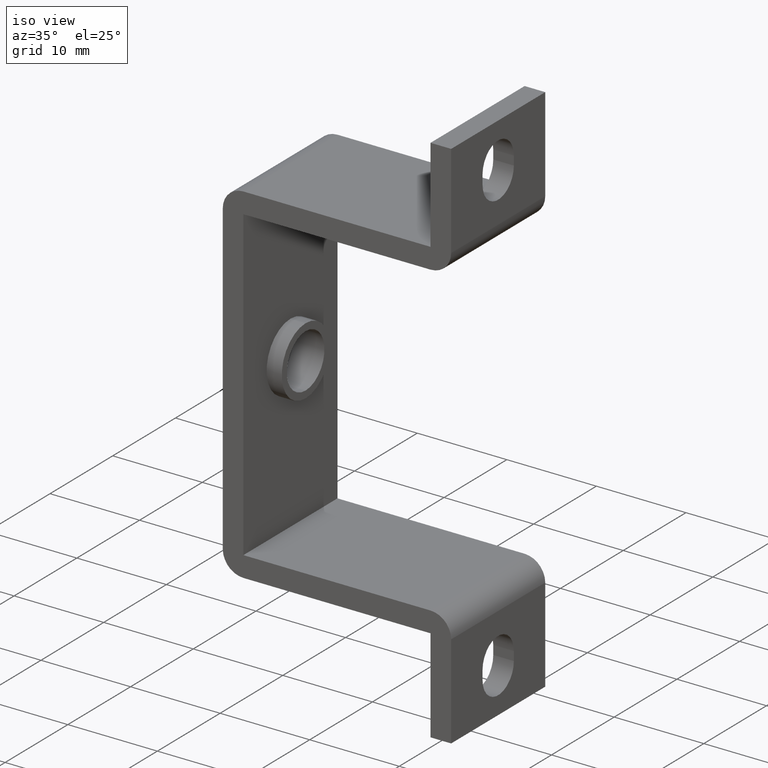
[diagram: clean part render]
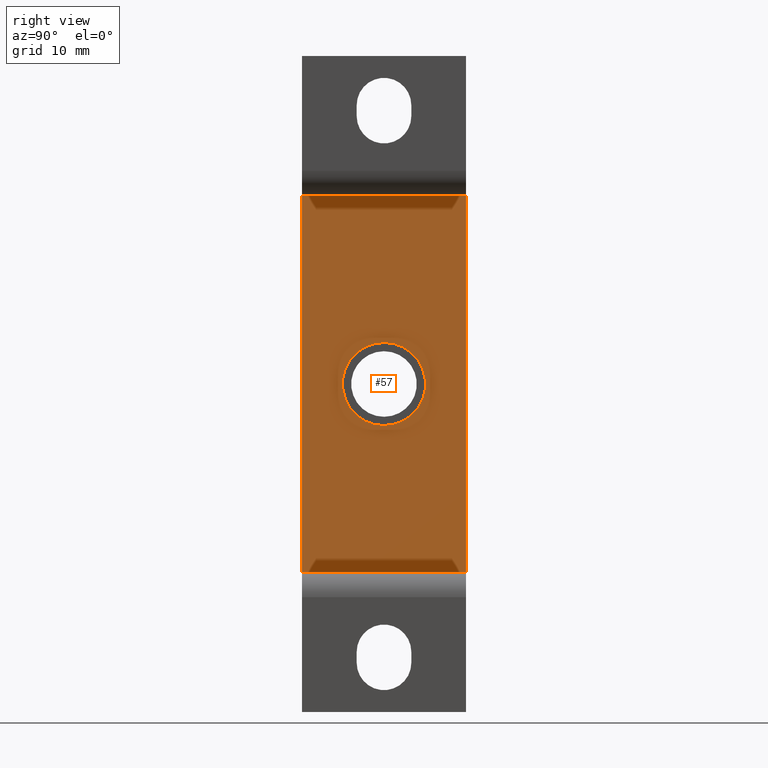
[diagram: tour spotlight — one face highlighted and labeled with its STEP entity id]
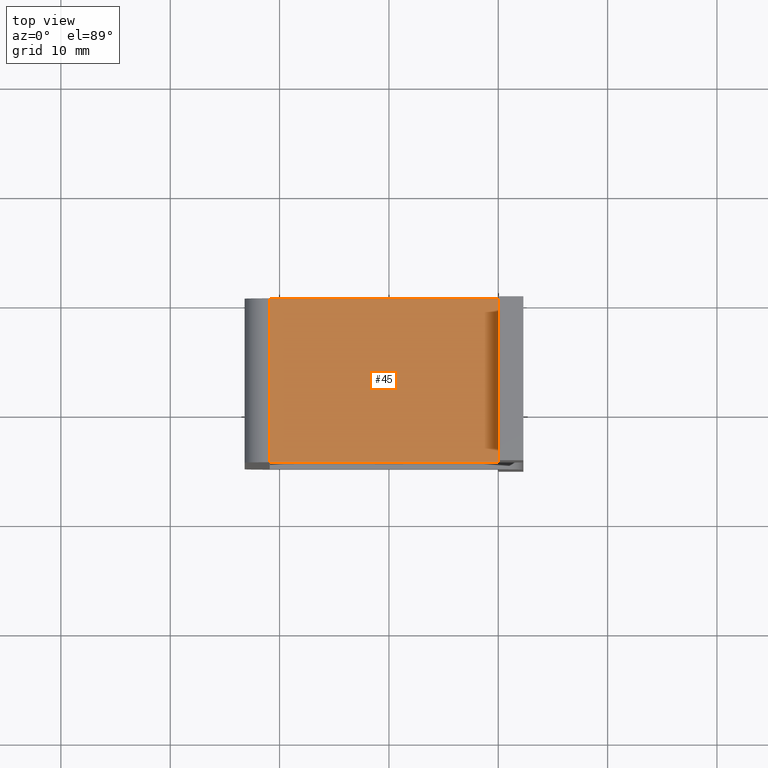
[diagram: tour spotlight — one face highlighted and labeled with its STEP entity id]
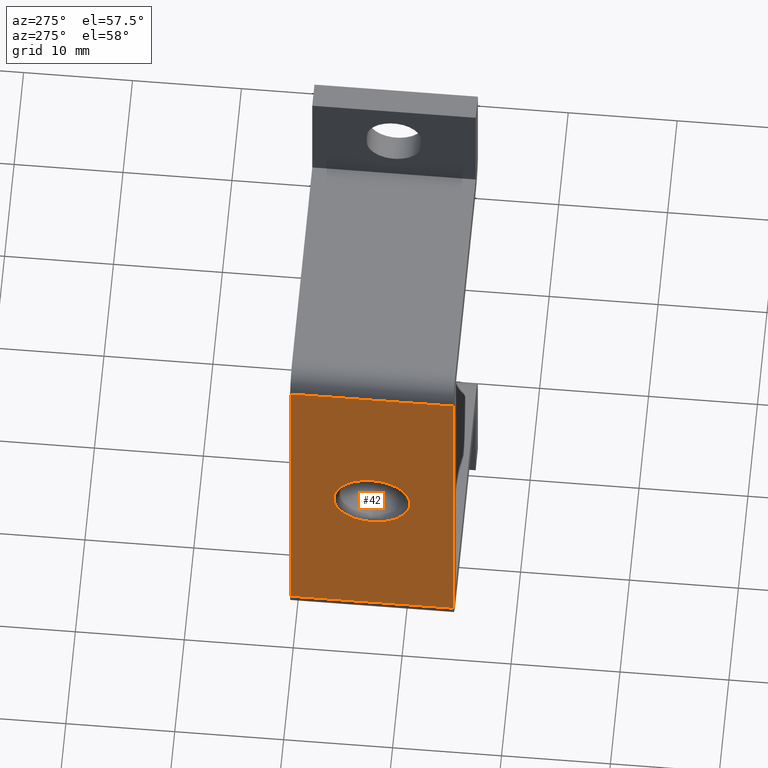
[diagram: tour spotlight — one face highlighted and labeled with its STEP entity id]
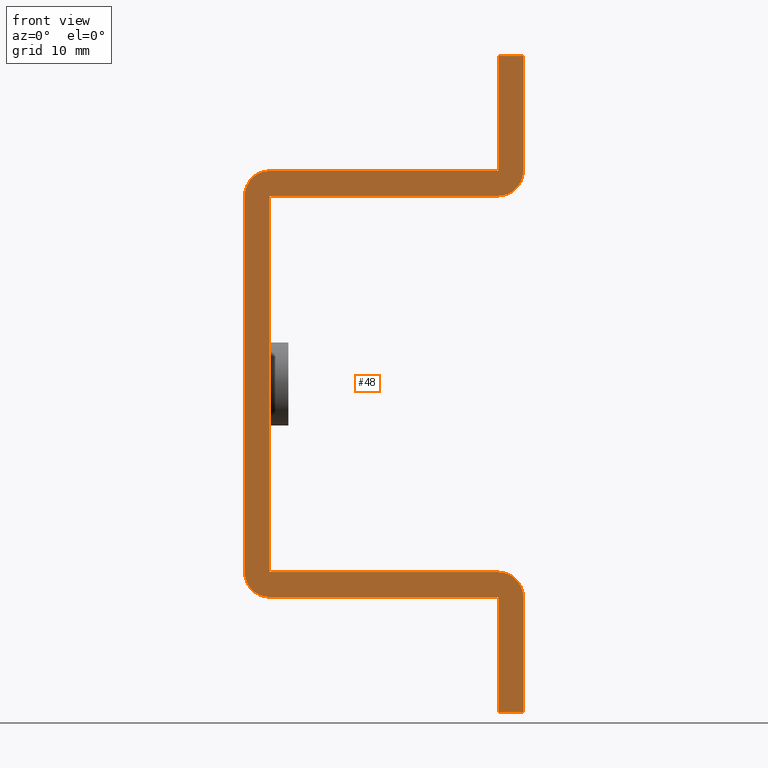
[diagram: tour spotlight — one face highlighted and labeled with its STEP entity id]
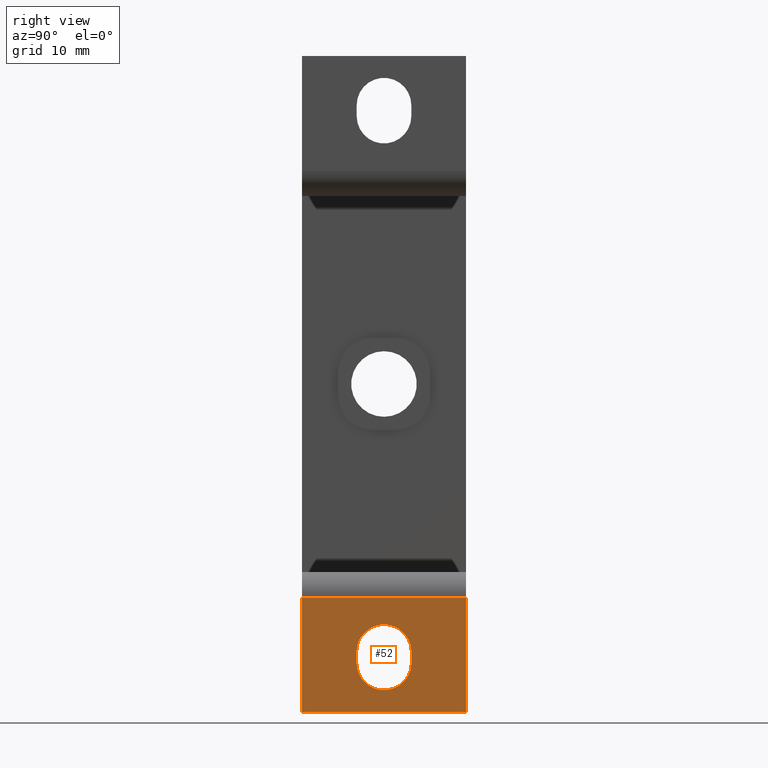
[diagram: tour spotlight — one face highlighted and labeled with its STEP entity id]
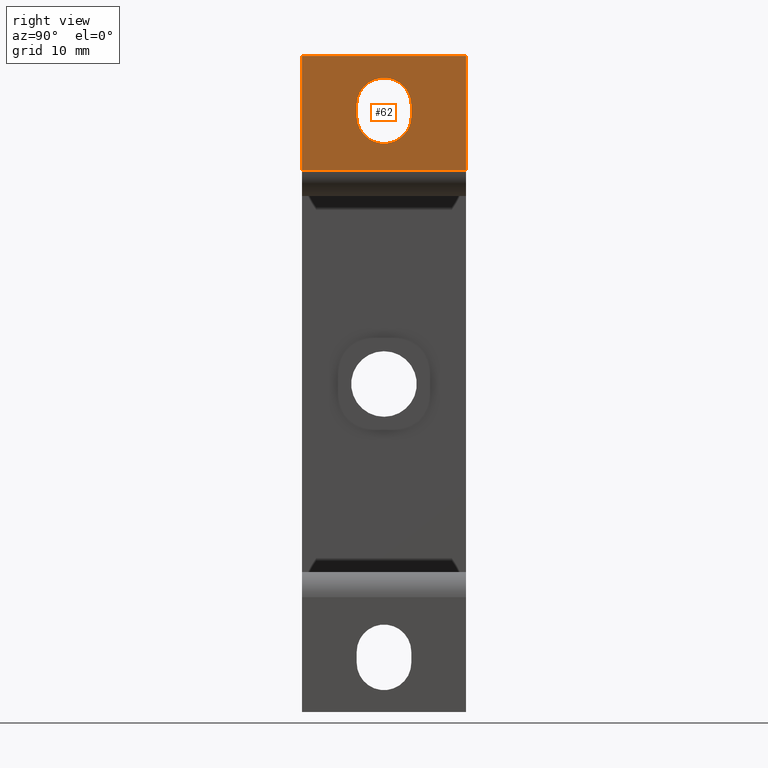
[diagram: tour spotlight — one face highlighted and labeled with its STEP entity id]
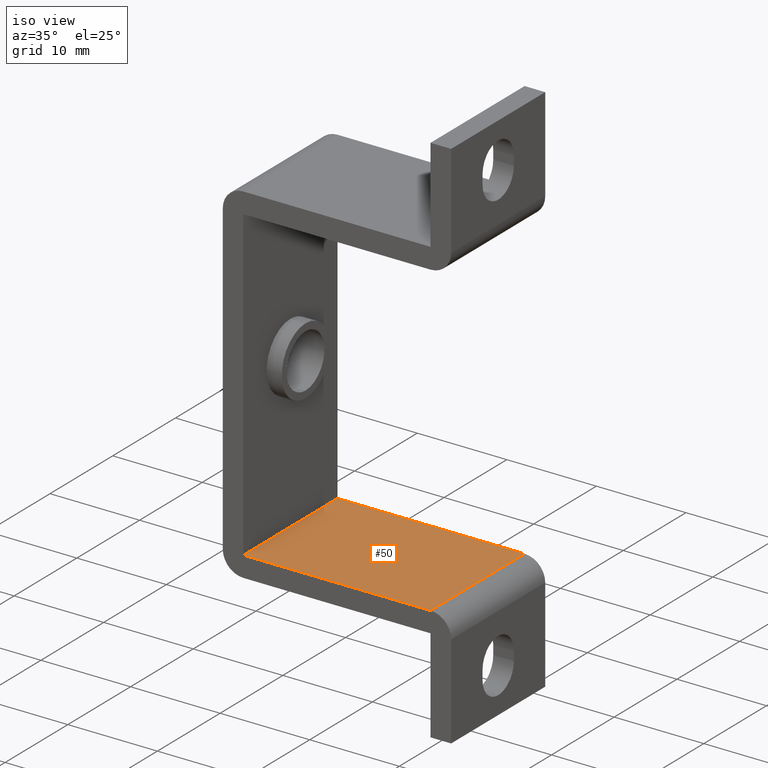
[diagram: tour spotlight — one face highlighted and labeled with its STEP entity id]
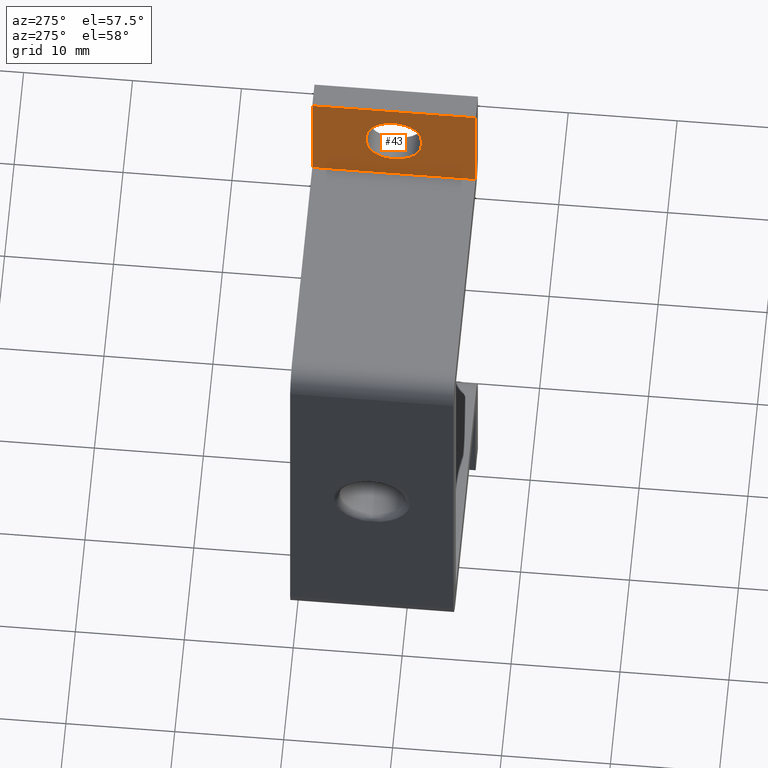
[diagram: tour spotlight — one face highlighted and labeled with its STEP entity id]
A machine part: a face-by-face anatomy tour. The part has 33 B-rep faces; the first image is the clean iso view, then the 8 largest visible faces are spotlighted one at a time (largest first), each with its STEP entity span.

Face 1 — right view, entity #57. In plain terms, the highlighted planar face has unit normal (-1, 0, 0).
Definition (entity closure, byte-faithful):
#57=ADVANCED_FACE('',(#249,#250),#248,.F.);
#248=PLANE('',#503);
#249=FACE_OUTER_BOUND('',#504,.T.);
#250=FACE_BOUND('',#505,.T.);
#500=CARTESIAN_POINT('',(-2.09000000000E+01,-1.65000000000E+01,9.36000000000E+00));
#501=DIRECTION('',(-1.00000000000E+00,0.00000000000E+00,0.00000000000E+00));
#502=DIRECTION('',(0.00000000000E+00,0.00000000000E+00,1.00000000000E+00));
#503=AXIS2_PLACEMENT_3D('',#500,#501,#502);
#504=EDGE_LOOP('',(#730,#731,#732,#733));
#505=EDGE_LOOP('',(#734,#735));
#730=ORIENTED_EDGE('',*,*,#868,.T.);
#731=ORIENTED_EDGE('',*,*,#831,.T.);
#732=ORIENTED_EDGE('',*,*,#854,.F.);
#733=ORIENTED_EDGE('',*,*,#845,.F.);
#734=ORIENTED_EDGE('',*,*,#869,.T.);
#735=ORIENTED_EDGE('',*,*,#870,.T.);
#831=EDGE_CURVE('',#1099,#1100,#1101,.T.);
#845=EDGE_CURVE('',#1189,#1196,#1197,.T.);
#854=EDGE_CURVE('',#1196,#1100,#1257,.T.);
#868=EDGE_CURVE('',#1189,#1099,#1349,.T.);
#869=EDGE_CURVE('',#1355,#1356,#1357,.T.);
#870=EDGE_CURVE('',#1356,#1355,#1363,.T.);
#1099=VERTEX_POINT('',#1603);
#1100=VERTEX_POINT('',#1604);
#1101=LINE('',#1605,#1606);
#1189=VERTEX_POINT('',#1658);
#1196=VERTEX_POINT('',#1662);
#1197=LINE('',#1663,#1664);
#1257=LINE('',#1698,#1699);
#1349=LINE('',#1752,#1753);
#1355=VERTEX_POINT('',#1755);
#1356=VERTEX_POINT('',#1756);
#1357=CIRCLE('',#1760,3.80000000000E+00);
#1363=CIRCLE('',#1764,3.80000000000E+00);
#1603=CARTESIAN_POINT('',(-2.09000000000E+01,-1.50000000000E+01,4.72000000000E+01));
#1604=CARTESIAN_POINT('',(-2.09000000000E+01,-1.50000000000E+01,1.28000000000E+01));
#1605=CARTESIAN_POINT('',(-2.09000000000E+01,-1.50000000000E+01,4.72000000000E+01));
#1606=VECTOR('',#1607,3.44000000000E+01);
#1607=DIRECTION('',(0.00000000000E+00,0.00000000000E+00,-1.00000000000E+00));
#1658=CARTESIAN_POINT('',(-2.09000000000E+01,0.00000000000E+00,4.72000000000E+01));
#1662=CARTESIAN_POINT('',(-2.09000000000E+01,0.00000000000E+00,1.28000000000E+01));
#1663=CARTESIAN_POINT('',(-2.09000000000E+01,0.00000000000E+00,4.72000000000E+01));
#1664=VECTOR('',#1665,3.44000000000E+01);
#1665=DIRECTION('',(0.00000000000E+00,0.00000000000E+00,-1.00000000000E+00));
#1698=CARTESIAN_POINT('',(-2.09000000000E+01,0.00000000000E+00,1.28000000000E+01));
#1699=VECTOR('',#1700,1.50000000000E+01);
#1700=DIRECTION('',(0.00000000000E+00,-1.00000000000E+00,0.00000000000E+00));
#1752=CARTESIAN_POINT('',(-2.09000000000E+01,0.00000000000E+00,4.72000000000E+01));
#1753=VECTOR('',#1754,1.50000000000E+01);
#1754=DIRECTION('',(0.00000000000E+00,-1.00000000000E+00,0.00000000000E+00));
#1755=CARTESIAN_POINT('',(-2.09000000000E+01,-7.50000000000E+00,2.62000000000E+01));
#1756=CARTESIAN_POINT('',(-2.09000000000E+01,-7.50000000000E+00,3.38000000000E+01));
#1757=CARTESIAN_POINT('',(-2.09000000000E+01,-7.50000000000E+00,3.00000000000E+01));
#1758=DIRECTION('',(-1.00000000000E+00,0.00000000000E+00,0.00000000000E+00));
#1759=DIRECTION('',(-0.00000000000E+00,-0.00000000000E+00,-1.00000000000E+00));
#1760=AXIS2_PLACEMENT_3D('',#1757,#1758,#1759);
#1761=CARTESIAN_POINT('',(-2.09000000000E+01,-7.50000000000E+00,3.00000000000E+01));
#1762=DIRECTION('',(-1.00000000000E+00,0.00000000000E+00,0.00000000000E+00));
#1763=DIRECTION('',(-0.00000000000E+00,-0.00000000000E+00,-1.00000000000E+00));
#1764=AXIS2_PLACEMENT_3D('',#1761,#1762,#1763);

Face 2 — top view, entity #45. In plain terms, the highlighted planar face has unit normal (0, 0, -1).
Definition (entity closure, byte-faithful):
#45=ADVANCED_FACE('',(#127),#126,.F.);
#126=PLANE('',#441);
#127=FACE_OUTER_BOUND('',#442,.T.);
#438=CARTESIAN_POINT('',(-2.29900000000E+01,1.50000000000E+00,4.95000000000E+01));
#439=DIRECTION('',(0.00000000000E+00,0.00000000000E+00,-1.00000000000E+00));
#440=DIRECTION('',(1.00000000000E+00,0.00000000000E+00,0.00000000000E+00));
#441=AXIS2_PLACEMENT_3D('',#438,#439,#440);
#442=EDGE_LOOP('',(#650,#651,#652,#653));
#650=ORIENTED_EDGE('',*,*,#824,.F.);
#651=ORIENTED_EDGE('',*,*,#817,.F.);
#652=ORIENTED_EDGE('',*,*,#825,.T.);
#653=ORIENTED_EDGE('',*,*,#826,.T.);
#817=EDGE_CURVE('',#1001,#987,#1008,.T.);
#824=EDGE_CURVE('',#987,#1054,#1055,.T.);
#825=EDGE_CURVE('',#1001,#1061,#1062,.T.);
#826=EDGE_CURVE('',#1061,#1054,#1068,.T.);
#987=VERTEX_POINT('',#1539);
#1001=VERTEX_POINT('',#1547);
#1008=LINE('',#1551,#1552);
#1054=VERTEX_POINT('',#1577);
#1055=LINE('',#1578,#1579);
#1061=VERTEX_POINT('',#1581);
#1062=LINE('',#1582,#1583);
#1068=LINE('',#1585,#1586);
#1539=CARTESIAN_POINT('',(0.00000000000E+00,-1.50000000000E+01,4.95000000000E+01));
#1547=CARTESIAN_POINT('',(0.00000000000E+00,0.00000000000E+00,4.95000000000E+01));
#1551=CARTESIAN_POINT('',(0.00000000000E+00,0.00000000000E+00,4.95000000000E+01));
#1552=VECTOR('',#1553,1.50000000000E+01);
#1553=DIRECTION('',(0.00000000000E+00,-1.00000000000E+00,0.00000000000E+00));
#1577=CARTESIAN_POINT('',(-2.09000000000E+01,-1.50000000000E+01,4.95000000000E+01));
#1578=CARTESIAN_POINT('',(0.00000000000E+00,-1.50000000000E+01,4.95000000000E+01));
#1579=VECTOR('',#1580,2.09000000000E+01);
#1580=DIRECTION('',(-1.00000000000E+00,0.00000000000E+00,0.00000000000E+00));
#1581=CARTESIAN_POINT('',(-2.09000000000E+01,0.00000000000E+00,4.95000000000E+01));
#1582=CARTESIAN_POINT('',(0.00000000000E+00,0.00000000000E+00,4.95000000000E+01));
#1583=VECTOR('',#1584,2.09000000000E+01);
#1584=DIRECTION('',(-1.00000000000E+00,0.00000000000E+00,0.00000000000E+00));
#1585=CARTESIAN_POINT('',(-2.09000000000E+01,0.00000000000E+00,4.95000000000E+01));
#1586=VECTOR('',#1587,1.50000000000E+01);
#1587=DIRECTION('',(0.00000000000E+00,-1.00000000000E+00,0.00000000000E+00));

Face 3 — auxiliary view, entity #42. In plain terms, the highlighted planar face has unit normal (1, 0, 0).
Definition (entity closure, byte-faithful):
#42=ADVANCED_FACE('',(#95,#96),#94,.F.);
#94=PLANE('',#424);
#95=FACE_OUTER_BOUND('',#425,.T.);
#96=FACE_BOUND('',#426,.T.);
#421=CARTESIAN_POINT('',(-2.32000000000E+01,-1.65000000000E+01,5.06400000000E+01));
#422=DIRECTION('',(1.00000000000E+00,0.00000000000E+00,0.00000000000E+00));
#423=DIRECTION('',(0.00000000000E+00,0.00000000000E+00,-1.00000000000E+00));
#424=AXIS2_PLACEMENT_3D('',#421,#422,#423);
#425=EDGE_LOOP('',(#632,#633,#634,#635));
#426=EDGE_LOOP('',(#636,#637));
#632=ORIENTED_EDGE('',*,*,#808,.T.);
#633=ORIENTED_EDGE('',*,*,#809,.F.);
#634=ORIENTED_EDGE('',*,*,#810,.F.);
#635=ORIENTED_EDGE('',*,*,#811,.T.);
#636=ORIENTED_EDGE('',*,*,#812,.T.);
#637=ORIENTED_EDGE('',*,*,#813,.T.);
#808=EDGE_CURVE('',#944,#945,#946,.T.);
#809=EDGE_CURVE('',#952,#945,#953,.T.);
#810=EDGE_CURVE('',#959,#952,#960,.T.);
#811=EDGE_CURVE('',#959,#944,#966,.T.);
#812=EDGE_CURVE('',#972,#973,#974,.T.);
#813=EDGE_CURVE('',#973,#972,#980,.T.);
#944=VERTEX_POINT('',#1512);
#945=VERTEX_POINT('',#1513);
#946=LINE('',#1514,#1515);
#952=VERTEX_POINT('',#1517);
#953=LINE('',#1518,#1519);
#959=VERTEX_POINT('',#1521);
#960=LINE('',#1522,#1523);
#966=LINE('',#1525,#1526);
#972=VERTEX_POINT('',#1528);
#973=VERTEX_POINT('',#1529);
#974=CIRCLE('',#1533,3.50000000000E+00);
#980=CIRCLE('',#1537,3.50000000000E+00);
#1512=CARTESIAN_POINT('',(-2.32000000000E+01,-1.50000000000E+01,1.28000000000E+01));
#1513=CARTESIAN_POINT('',(-2.32000000000E+01,-1.50000000000E+01,4.72000000000E+01));
#1514=CARTESIAN_POINT('',(-2.32000000000E+01,-1.50000000000E+01,1.28000000000E+01));
#1515=VECTOR('',#1516,3.44000000000E+01);
#1516=DIRECTION('',(0.00000000000E+00,0.00000000000E+00,1.00000000000E+00));
#1517=CARTESIAN_POINT('',(-2.32000000000E+01,0.00000000000E+00,4.72000000000E+01));
#1518=CARTESIAN_POINT('',(-2.32000000000E+01,0.00000000000E+00,4.72000000000E+01));
#1519=VECTOR('',#1520,1.50000000000E+01);
#1520=DIRECTION('',(0.00000000000E+00,-1.00000000000E+00,0.00000000000E+00));
#1521=CARTESIAN_POINT('',(-2.32000000000E+01,0.00000000000E+00,1.28000000000E+01));
#1522=CARTESIAN_POINT('',(-2.32000000000E+01,0.00000000000E+00,1.28000000000E+01));
#1523=VECTOR('',#1524,3.44000000000E+01);
#1524=DIRECTION('',(0.00000000000E+00,0.00000000000E+00,1.00000000000E+00));
#1525=CARTESIAN_POINT('',(-2.32000000000E+01,0.00000000000E+00,1.28000000000E+01));
#1526=VECTOR('',#1527,1.50000000000E+01);
#1527=DIRECTION('',(0.00000000000E+00,-1.00000000000E+00,0.00000000000E+00));
#1528=CARTESIAN_POINT('',(-2.32000000000E+01,-7.50000000000E+00,3.35000000000E+01));
#1529=CARTESIAN_POINT('',(-2.32000000000E+01,-7.50000000000E+00,2.65000000000E+01));
#1530=CARTESIAN_POINT('',(-2.32000000000E+01,-7.50000000000E+00,3.00000000000E+01));
#1531=DIRECTION('',(1.00000000000E+00,0.00000000000E+00,0.00000000000E+00));
#1532=DIRECTION('',(-0.00000000000E+00,-0.00000000000E+00,1.00000000000E+00));
#1533=AXIS2_PLACEMENT_3D('',#1530,#1531,#1532);
#1534=CARTESIAN_POINT('',(-2.32000000000E+01,-7.50000000000E+00,3.00000000000E+01));
#1535=DIRECTION('',(1.00000000000E+00,0.00000000000E+00,0.00000000000E+00));
#1536=DIRECTION('',(-0.00000000000E+00,-0.00000000000E+00,1.00000000000E+00));
#1537=AXIS2_PLACEMENT_3D('',#1534,#1535,#1536);

Face 4 — front view, entity #48. In plain terms, the highlighted planar face has unit normal (-0, 1, 0).
Definition (entity closure, byte-faithful):
#48=ADVANCED_FACE('',(#157),#156,.F.);
#156=PLANE('',#456);
#157=FACE_OUTER_BOUND('',#457,.T.);
#453=CARTESIAN_POINT('',(-2.57500000000E+01,-1.50000000000E+01,-6.00000000000E+00));
#454=DIRECTION('',(-0.00000000000E+00,1.00000000000E+00,0.00000000000E+00));
#455=DIRECTION('',(0.00000000000E+00,0.00000000000E+00,1.00000000000E+00));
#456=AXIS2_PLACEMENT_3D('',#453,#454,#455);
#457=EDGE_LOOP('',(#662,#663,#664,#665,#666,#667,#668,#669,#670,#671,#672,#673,#674,#675,#676,#677));
#662=ORIENTED_EDGE('',*,*,#831,.F.);
#663=ORIENTED_EDGE('',*,*,#832,.T.);
#664=ORIENTED_EDGE('',*,*,#833,.F.);
#665=ORIENTED_EDGE('',*,*,#834,.T.);
#666=ORIENTED_EDGE('',*,*,#821,.T.);
#667=ORIENTED_EDGE('',*,*,#814,.T.);
#668=ORIENTED_EDGE('',*,*,#824,.T.);
#669=ORIENTED_EDGE('',*,*,#829,.F.);
#670=ORIENTED_EDGE('',*,*,#808,.F.);
#671=ORIENTED_EDGE('',*,*,#835,.T.);
#672=ORIENTED_EDGE('',*,*,#836,.F.);
#673=ORIENTED_EDGE('',*,*,#837,.F.);
#674=ORIENTED_EDGE('',*,*,#838,.F.);
#675=ORIENTED_EDGE('',*,*,#839,.F.);
#676=ORIENTED_EDGE('',*,*,#840,.T.);
#677=ORIENTED_EDGE('',*,*,#841,.F.);
#808=EDGE_CURVE('',#944,#945,#946,.T.);
#814=EDGE_CURVE('',#986,#987,#988,.T.);
#821=EDGE_CURVE('',#1034,#986,#1035,.T.);
#824=EDGE_CURVE('',#987,#1054,#1055,.T.);
#829=EDGE_CURVE('',#945,#1054,#1087,.T.);
#831=EDGE_CURVE('',#1099,#1100,#1101,.T.);
#832=EDGE_CURVE('',#1099,#1107,#1108,.T.);
#833=EDGE_CURVE('',#1114,#1107,#1115,.T.);
#834=EDGE_CURVE('',#1114,#1034,#1121,.T.);
#835=EDGE_CURVE('',#944,#1127,#1128,.T.);
#836=EDGE_CURVE('',#1134,#1127,#1135,.T.);
#837=EDGE_CURVE('',#1141,#1134,#1142,.T.);
#838=EDGE_CURVE('',#1148,#1141,#1149,.T.);
#839=EDGE_CURVE('',#1155,#1148,#1156,.T.);
#840=EDGE_CURVE('',#1155,#1162,#1163,.T.);
#841=EDGE_CURVE('',#1100,#1162,#1169,.T.);
#944=VERTEX_POINT('',#1512);
#945=VERTEX_POINT('',#1513);
#946=LINE('',#1514,#1515);
#986=VERTEX_POINT('',#1538);
#987=VERTEX_POINT('',#1539);
#988=LINE('',#1540,#1541);
#1034=VERTEX_POINT('',#1566);
#1035=LINE('',#1567,#1568);
#1054=VERTEX_POINT('',#1577);
#1055=LINE('',#1578,#1579);
#1087=CIRCLE('',#1598,2.30000000000E+00);
#1099=VERTEX_POINT('',#1603);
#1100=VERTEX_POINT('',#1604);
#1101=LINE('',#1605,#1606);
#1107=VERTEX_POINT('',#1608);
#1108=LINE('',#1609,#1610);
#1114=VERTEX_POINT('',#1612);
#1115=CIRCLE('',#1616,2.30000000000E+00);
#1121=LINE('',#1617,#1618);
#1127=VERTEX_POINT('',#1620);
#1128=CIRCLE('',#1624,2.30000000000E+00);
#1134=VERTEX_POINT('',#1625);
#1135=LINE('',#1626,#1627);
#1141=VERTEX_POINT('',#1629);
#1142=LINE('',#1630,#1631);
#1148=VERTEX_POINT('',#1633);
#1149=LINE('',#1634,#1635);
#1155=VERTEX_POINT('',#1637);
#1156=LINE('',#1638,#1639);
#1162=VERTEX_POINT('',#1641);
#1163=CIRCLE('',#1645,2.30000000000E+00);
#1169=LINE('',#1646,#1647);
#1512=CARTESIAN_POINT('',(-2.32000000000E+01,-1.50000000000E+01,1.28000000000E+01));
#1513=CARTESIAN_POINT('',(-2.32000000000E+01,-1.50000000000E+01,4.72000000000E+01));
#1514=CARTESIAN_POINT('',(-2.32000000000E+01,-1.50000000000E+01,1.28000000000E+01));
#1515=VECTOR('',#1516,3.44000000000E+01);
#1516=DIRECTION('',(0.00000000000E+00,0.00000000000E+00,1.00000000000E+00));
#1538=CARTESIAN_POINT('',(0.00000000000E+00,-1.50000000000E+01,6.00000000000E+01));
#1539=CARTESIAN_POINT('',(0.00000000000E+00,-1.50000000000E+01,4.95000000000E+01));
#1540=CARTESIAN_POINT('',(0.00000000000E+00,-1.50000000000E+01,6.00000000000E+01));
#1541=VECTOR('',#1542,1.05000000000E+01);
#1542=DIRECTION('',(0.00000000000E+00,0.00000000000E+00,-1.00000000000E+00));
#1566=CARTESIAN_POINT('',(2.30000000000E+00,-1.50000000000E+01,6.00000000000E+01));
#1567=CARTESIAN_POINT('',(2.30000000000E+00,-1.50000000000E+01,6.00000000000E+01));
#1568=VECTOR('',#1569,2.30000000000E+00);
#1569=DIRECTION('',(-1.00000000000E+00,0.00000000000E+00,0.00000000000E+00));
#1577=CARTESIAN_POINT('',(-2.09000000000E+01,-1.50000000000E+01,4.95000000000E+01));
#1578=CARTESIAN_POINT('',(0.00000000000E+00,-1.50000000000E+01,4.95000000000E+01));
#1579=VECTOR('',#1580,2.09000000000E+01);
#1580=DIRECTION('',(-1.00000000000E+00,0.00000000000E+00,0.00000000000E+00));
#1595=CARTESIAN_POINT('',(-2.09000000000E+01,-1.50000000000E+01,4.72000000000E+01));
#1596=DIRECTION('',(0.00000000000E+00,1.00000000000E+00,0.00000000000E+00));
#1597=DIRECTION('',(1.00000000000E+00,-0.00000000000E+00,-0.00000000000E+00));
#1598=AXIS2_PLACEMENT_3D('',#1595,#1596,#1597);
#1603=CARTESIAN_POINT('',(-2.09000000000E+01,-1.50000000000E+01,4.72000000000E+01));
#1604=CARTESIAN_POINT('',(-2.09000000000E+01,-1.50000000000E+01,1.28000000000E+01));
#1605=CARTESIAN_POINT('',(-2.09000000000E+01,-1.50000000000E+01,4.72000000000E+01));
#1606=VECTOR('',#1607,3.44000000000E+01);
#1607=DIRECTION('',(0.00000000000E+00,0.00000000000E+00,-1.00000000000E+00));
#1608=CARTESIAN_POINT('',(0.00000000000E+00,-1.50000000000E+01,4.72000000000E+01));
#1609=CARTESIAN_POINT('',(-2.09000000000E+01,-1.50000000000E+01,4.72000000000E+01));
#1610=VECTOR('',#1611,2.09000000000E+01);
#1611=DIRECTION('',(1.00000000000E+00,0.00000000000E+00,0.00000000000E+00));
#1612=CARTESIAN_POINT('',(2.30000000000E+00,-1.50000000000E+01,4.95000000000E+01));
#1613=CARTESIAN_POINT('',(-1.40834381902E-16,-1.50000000000E+01,4.95000000000E+01));
#1614=DIRECTION('',(-0.00000000000E+00,1.00000000000E+00,0.00000000000E+00));
#1615=DIRECTION('',(-1.00000000000E+00,-0.00000000000E+00,-0.00000000000E+00));
#1616=AXIS2_PLACEMENT_3D('',#1613,#1614,#1615);
#1617=CARTESIAN_POINT('',(2.30000000000E+00,-1.50000000000E+01,4.95000000000E+01));
#1618=VECTOR('',#1619,1.05000000000E+01);
#1619=DIRECTION('',(0.00000000000E+00,0.00000000000E+00,1.00000000000E+00));
#1620=CARTESIAN_POINT('',(-2.09000000000E+01,-1.50000000000E+01,1.05000000000E+01));
#1621=CARTESIAN_POINT('',(-2.09000000000E+01,-1.50000000000E+01,1.28000000000E+01));
#1622=DIRECTION('',(0.00000000000E+00,-1.00000000000E+00,0.00000000000E+00));
#1623=DIRECTION('',(1.00000000000E+00,-0.00000000000E+00,-0.00000000000E+00));
#1624=AXIS2_PLACEMENT_3D('',#1621,#1622,#1623);
#1625=CARTESIAN_POINT('',(0.00000000000E+00,-1.50000000000E+01,1.05000000000E+01));
#1626=CARTESIAN_POINT('',(0.00000000000E+00,-1.50000000000E+01,1.05000000000E+01));
#1627=VECTOR('',#1628,2.09000000000E+01);
#1628=DIRECTION('',(-1.00000000000E+00,0.00000000000E+00,0.00000000000E+00));
#1629=CARTESIAN_POINT('',(0.00000000000E+00,-1.50000000000E+01,0.00000000000E+00));
#1630=CARTESIAN_POINT('',(0.00000000000E+00,-1.50000000000E+01,0.00000000000E+00));
#1631=VECTOR('',#1632,1.05000000000E+01);
#1632=DIRECTION('',(0.00000000000E+00,0.00000000000E+00,1.00000000000E+00));
#1633=CARTESIAN_POINT('',(2.30000000000E+00,-1.50000000000E+01,0.00000000000E+00));
#1634=CARTESIAN_POINT('',(2.30000000000E+00,-1.50000000000E+01,0.00000000000E+00));
#1635=VECTOR('',#1636,2.30000000000E+00);
#1636=DIRECTION('',(-1.00000000000E+00,0.00000000000E+00,0.00000000000E+00));
#1637=CARTESIAN_POINT('',(2.30000000000E+00,-1.50000000000E+01,1.05000000000E+01));
#1638=CARTESIAN_POINT('',(2.30000000000E+00,-1.50000000000E+01,1.05000000000E+01));
#1639=VECTOR('',#1640,1.05000000000E+01);
#1640=DIRECTION('',(0.00000000000E+00,0.00000000000E+00,-1.00000000000E+00));
#1641=CARTESIAN_POINT('',(0.00000000000E+00,-1.50000000000E+01,1.28000000000E+01));
#1642=CARTESIAN_POINT('',(-1.40834381902E-16,-1.50000000000E+01,1.05000000000E+01));
#1643=DIRECTION('',(0.00000000000E+00,-1.00000000000E+00,0.00000000000E+00));
#1644=DIRECTION('',(-1.00000000000E+00,-0.00000000000E+00,-0.00000000000E+00));
#1645=AXIS2_PLACEMENT_3D('',#1642,#1643,#1644);
#1646=CARTESIAN_POINT('',(-2.09000000000E+01,-1.50000000000E+01,1.28000000000E+01));
#1647=VECTOR('',#1648,2.09000000000E+01);
#1648=DIRECTION('',(1.00000000000E+00,0.00000000000E+00,0.00000000000E+00));

Face 5 — right view, entity #52. In plain terms, the highlighted planar face has unit normal (-1, 0, -0).
Definition (entity closure, byte-faithful):
#52=ADVANCED_FACE('',(#197,#198),#196,.F.);
#196=PLANE('',#476);
#197=FACE_OUTER_BOUND('',#477,.T.);
#198=FACE_BOUND('',#478,.T.);
#473=CARTESIAN_POINT('',(2.30000000000E+00,-1.65000000000E+01,-1.05000000000E+00));
#474=DIRECTION('',(-1.00000000000E+00,0.00000000000E+00,-9.91270557701E-16));
#475=DIRECTION('',(-9.91270557701E-16,0.00000000000E+00,1.00000000000E+00));
#476=AXIS2_PLACEMENT_3D('',#473,#474,#475);
#477=EDGE_LOOP('',(#702,#703,#704,#705));
#478=EDGE_LOOP('',(#706,#707,#708,#709));
#702=ORIENTED_EDGE('',*,*,#839,.T.);
#703=ORIENTED_EDGE('',*,*,#856,.F.);
#704=ORIENTED_EDGE('',*,*,#848,.F.);
#705=ORIENTED_EDGE('',*,*,#855,.T.);
#706=ORIENTED_EDGE('',*,*,#857,.T.);
#707=ORIENTED_EDGE('',*,*,#858,.T.);
#708=ORIENTED_EDGE('',*,*,#859,.T.);
#709=ORIENTED_EDGE('',*,*,#860,.T.);
#839=EDGE_CURVE('',#1155,#1148,#1156,.T.);
#848=EDGE_CURVE('',#1210,#1217,#1218,.T.);
#855=EDGE_CURVE('',#1210,#1155,#1263,.T.);
#856=EDGE_CURVE('',#1217,#1148,#1269,.T.);
#857=EDGE_CURVE('',#1275,#1276,#1277,.T.);
#858=EDGE_CURVE('',#1276,#1283,#1284,.T.);
#859=EDGE_CURVE('',#1283,#1290,#1291,.T.);
#860=EDGE_CURVE('',#1290,#1275,#1297,.T.);
#1148=VERTEX_POINT('',#1633);
#1155=VERTEX_POINT('',#1637);
#1156=LINE('',#1638,#1639);
#1210=VERTEX_POINT('',#1670);
#1217=VERTEX_POINT('',#1675);
#1218=LINE('',#1676,#1677);
#1263=LINE('',#1701,#1702);
#1269=LINE('',#1704,#1705);
#1275=VERTEX_POINT('',#1707);
#1276=VERTEX_POINT('',#1708);
#1277=LINE('',#1709,#1710);
#1283=VERTEX_POINT('',#1712);
#1284=CIRCLE('',#1716,2.50000000000E+00);
#1290=VERTEX_POINT('',#1717);
#1291=LINE('',#1718,#1719);
#1297=CIRCLE('',#1724,2.50000000000E+00);
#1633=CARTESIAN_POINT('',(2.30000000000E+00,-1.50000000000E+01,0.00000000000E+00));
#1637=CARTESIAN_POINT('',(2.30000000000E+00,-1.50000000000E+01,1.05000000000E+01));
#1638=CARTESIAN_POINT('',(2.30000000000E+00,-1.50000000000E+01,1.05000000000E+01));
#1639=VECTOR('',#1640,1.05000000000E+01);
#1640=DIRECTION('',(0.00000000000E+00,0.00000000000E+00,-1.00000000000E+00));
#1670=CARTESIAN_POINT('',(2.30000000000E+00,0.00000000000E+00,1.05000000000E+01));
#1675=CARTESIAN_POINT('',(2.30000000000E+00,0.00000000000E+00,0.00000000000E+00));
#1676=CARTESIAN_POINT('',(2.30000000000E+00,0.00000000000E+00,1.05000000000E+01));
#1677=VECTOR('',#1678,1.05000000000E+01);
#1678=DIRECTION('',(0.00000000000E+00,0.00000000000E+00,-1.00000000000E+00));
#1701=CARTESIAN_POINT('',(2.30000000000E+00,0.00000000000E+00,1.05000000000E+01));
#1702=VECTOR('',#1703,1.50000000000E+01);
#1703=DIRECTION('',(0.00000000000E+00,-1.00000000000E+00,0.00000000000E+00));
#1704=CARTESIAN_POINT('',(2.30000000000E+00,0.00000000000E+00,0.00000000000E+00));
#1705=VECTOR('',#1706,1.50000000000E+01);
#1706=DIRECTION('',(0.00000000000E+00,-1.00000000000E+00,0.00000000000E+00));
#1707=CARTESIAN_POINT('',(2.30000000000E+00,-1.00000000000E+01,4.50000000000E+00));
#1708=CARTESIAN_POINT('',(2.30000000000E+00,-1.00000000000E+01,5.50000000000E+00));
#1709=CARTESIAN_POINT('',(2.30000000000E+00,-1.00000000000E+01,4.50000000000E+00));
#1710=VECTOR('',#1711,1.00000000000E+00);
#1711=DIRECTION('',(0.00000000000E+00,0.00000000000E+00,1.00000000000E+00));
#1712=CARTESIAN_POINT('',(2.30000000000E+00,-5.00000000000E+00,5.49999999997E+00));
#1713=CARTESIAN_POINT('',(2.30000000000E+00,-7.50000000000E+00,5.50000000000E+00));
#1714=DIRECTION('',(-1.00000000000E+00,-0.00000000000E+00,0.00000000000E+00));
#1715=DIRECTION('',(0.00000000000E+00,-1.00000000000E+00,-1.22460635382E-16));
#1716=AXIS2_PLACEMENT_3D('',#1713,#1714,#1715);
#1717=CARTESIAN_POINT('',(2.30000000000E+00,-5.00000000000E+00,4.50000018216E+00));
#1718=CARTESIAN_POINT('',(2.30000000000E+00,-5.00000000000E+00,5.49999999997E+00));
#1719=VECTOR('',#1720,9.99999817810E-01);
#1720=DIRECTION('',(0.00000000000E+00,0.00000000000E+00,-1.00000000000E+00));
#1721=CARTESIAN_POINT('',(2.30000000000E+00,-7.50000000000E+00,4.50000000000E+00));
#1722=DIRECTION('',(-1.00000000000E+00,0.00000000000E+00,0.00000000000E+00));
#1723=DIRECTION('',(0.00000000000E+00,1.00000000000E+00,7.28640001116E-08));
#1724=AXIS2_PLACEMENT_3D('',#1721,#1722,#1723);

Face 6 — right view, entity #62. In plain terms, the highlighted planar face has unit normal (-1, 0, 0).
Definition (entity closure, byte-faithful):
#62=ADVANCED_FACE('',(#300,#301),#299,.F.);
#299=PLANE('',#529);
#300=FACE_OUTER_BOUND('',#530,.T.);
#301=FACE_BOUND('',#531,.T.);
#526=CARTESIAN_POINT('',(2.30000000000E+00,1.50000000000E+00,6.10500000000E+01));
#527=DIRECTION('',(-1.00000000000E+00,0.00000000000E+00,9.91270557701E-16));
#528=DIRECTION('',(-9.91270557701E-16,0.00000000000E+00,-1.00000000000E+00));
#529=AXIS2_PLACEMENT_3D('',#526,#527,#528);
#530=EDGE_LOOP('',(#752,#753,#754,#755));
#531=EDGE_LOOP('',(#756,#757,#758,#759));
#752=ORIENTED_EDGE('',*,*,#834,.F.);
#753=ORIENTED_EDGE('',*,*,#875,.F.);
#754=ORIENTED_EDGE('',*,*,#842,.T.);
#755=ORIENTED_EDGE('',*,*,#822,.T.);
#756=ORIENTED_EDGE('',*,*,#827,.F.);
#757=ORIENTED_EDGE('',*,*,#804,.F.);
#758=ORIENTED_EDGE('',*,*,#876,.F.);
#759=ORIENTED_EDGE('',*,*,#877,.F.);
#804=EDGE_CURVE('',#916,#917,#918,.T.);
#822=EDGE_CURVE('',#1041,#1034,#1042,.T.);
#827=EDGE_CURVE('',#917,#1074,#1075,.T.);
#834=EDGE_CURVE('',#1114,#1034,#1121,.T.);
#842=EDGE_CURVE('',#1175,#1041,#1176,.T.);
#875=EDGE_CURVE('',#1175,#1114,#1393,.T.);
#876=EDGE_CURVE('',#1399,#916,#1400,.T.);
#877=EDGE_CURVE('',#1074,#1399,#1406,.T.);
#916=VERTEX_POINT('',#1494);
#917=VERTEX_POINT('',#1495);
#918=CIRCLE('',#1499,2.50000000000E+00);
#1034=VERTEX_POINT('',#1566);
#1041=VERTEX_POINT('',#1570);
#1042=LINE('',#1571,#1572);
#1074=VERTEX_POINT('',#1588);
#1075=LINE('',#1589,#1590);
#1114=VERTEX_POINT('',#1612);
#1121=LINE('',#1617,#1618);
#1175=VERTEX_POINT('',#1649);
#1176=LINE('',#1650,#1651);
#1393=LINE('',#1777,#1778);
#1399=VERTEX_POINT('',#1780);
#1400=LINE('',#1781,#1782);
#1406=CIRCLE('',#1787,2.50000000000E+00);
#1494=CARTESIAN_POINT('',(2.30000000000E+00,-5.00000000000E+00,5.54999998178E+01));
#1495=CARTESIAN_POINT('',(2.30000000000E+00,-1.00000000000E+01,5.55000000000E+01));
#1496=CARTESIAN_POINT('',(2.30000000000E+00,-7.50000000000E+00,5.55000000000E+01));
#1497=DIRECTION('',(1.00000000000E+00,-0.00000000000E+00,0.00000000000E+00));
#1498=DIRECTION('',(0.00000000000E+00,1.00000000000E+00,-7.28799990472E-08));
#1499=AXIS2_PLACEMENT_3D('',#1496,#1497,#1498);
#1566=CARTESIAN_POINT('',(2.30000000000E+00,-1.50000000000E+01,6.00000000000E+01));
#1570=CARTESIAN_POINT('',(2.30000000000E+00,0.00000000000E+00,6.00000000000E+01));
#1571=CARTESIAN_POINT('',(2.30000000000E+00,0.00000000000E+00,6.00000000000E+01));
#1572=VECTOR('',#1573,1.50000000000E+01);
#1573=DIRECTION('',(0.00000000000E+00,-1.00000000000E+00,0.00000000000E+00));
#1588=CARTESIAN_POINT('',(2.30000000000E+00,-1.00000000000E+01,5.45000000000E+01));
#1589=CARTESIAN_POINT('',(2.30000000000E+00,-1.00000000000E+01,5.55000000000E+01));
#1590=VECTOR('',#1591,1.00000000000E+00);
#1591=DIRECTION('',(0.00000000000E+00,0.00000000000E+00,-1.00000000000E+00));
#1612=CARTESIAN_POINT('',(2.30000000000E+00,-1.50000000000E+01,4.95000000000E+01));
#1617=CARTESIAN_POINT('',(2.30000000000E+00,-1.50000000000E+01,4.95000000000E+01));
#1618=VECTOR('',#1619,1.05000000000E+01);
#1619=DIRECTION('',(0.00000000000E+00,0.00000000000E+00,1.00000000000E+00));
#1649=CARTESIAN_POINT('',(2.30000000000E+00,0.00000000000E+00,4.95000000000E+01));
#1650=CARTESIAN_POINT('',(2.30000000000E+00,0.00000000000E+00,4.95000000000E+01));
#1651=VECTOR('',#1652,1.05000000000E+01);
#1652=DIRECTION('',(0.00000000000E+00,0.00000000000E+00,1.00000000000E+00));
#1777=CARTESIAN_POINT('',(2.30000000000E+00,0.00000000000E+00,4.95000000000E+01));
#1778=VECTOR('',#1779,1.50000000000E+01);
#1779=DIRECTION('',(0.00000000000E+00,-1.00000000000E+00,0.00000000000E+00));
#1780=CARTESIAN_POINT('',(2.30000000000E+00,-5.00000000000E+00,5.45000000000E+01));
#1781=CARTESIAN_POINT('',(2.30000000000E+00,-5.00000000000E+00,5.45000000000E+01));
#1782=VECTOR('',#1783,9.99999817800E-01);
#1783=DIRECTION('',(0.00000000000E+00,0.00000000000E+00,1.00000000000E+00));
#1784=CARTESIAN_POINT('',(2.30000000000E+00,-7.50000000000E+00,5.45000000000E+01));
#1785=DIRECTION('',(1.00000000000E+00,0.00000000000E+00,0.00000000000E+00));
#1786=DIRECTION('',(0.00000000000E+00,-1.00000000000E+00,1.22460635382E-16));
#1787=AXIS2_PLACEMENT_3D('',#1784,#1785,#1786);

Face 7 — iso view, entity #50. In plain terms, the highlighted planar face has unit normal (0, 0, -1).
Definition (entity closure, byte-faithful):
#50=ADVANCED_FACE('',(#177),#176,.F.);
#176=PLANE('',#466);
#177=FACE_OUTER_BOUND('',#467,.T.);
#463=CARTESIAN_POINT('',(2.09000000000E+00,-1.65000000000E+01,1.28000000000E+01));
#464=DIRECTION('',(0.00000000000E+00,0.00000000000E+00,-1.00000000000E+00));
#465=DIRECTION('',(-1.00000000000E+00,0.00000000000E+00,0.00000000000E+00));
#466=AXIS2_PLACEMENT_3D('',#463,#464,#465);
#467=EDGE_LOOP('',(#694,#695,#696,#697));
#694=ORIENTED_EDGE('',*,*,#841,.T.);
#695=ORIENTED_EDGE('',*,*,#853,.F.);
#696=ORIENTED_EDGE('',*,*,#846,.F.);
#697=ORIENTED_EDGE('',*,*,#854,.T.);
#841=EDGE_CURVE('',#1100,#1162,#1169,.T.);
#846=EDGE_CURVE('',#1196,#1203,#1204,.T.);
#853=EDGE_CURVE('',#1203,#1162,#1251,.T.);
#854=EDGE_CURVE('',#1196,#1100,#1257,.T.);
#1100=VERTEX_POINT('',#1604);
#1162=VERTEX_POINT('',#1641);
#1169=LINE('',#1646,#1647);
#1196=VERTEX_POINT('',#1662);
#1203=VERTEX_POINT('',#1666);
#1204=LINE('',#1667,#1668);
#1251=LINE('',#1695,#1696);
#1257=LINE('',#1698,#1699);
#1604=CARTESIAN_POINT('',(-2.09000000000E+01,-1.50000000000E+01,1.28000000000E+01));
#1641=CARTESIAN_POINT('',(0.00000000000E+00,-1.50000000000E+01,1.28000000000E+01));
#1646=CARTESIAN_POINT('',(-2.09000000000E+01,-1.50000000000E+01,1.28000000000E+01));
#1647=VECTOR('',#1648,2.09000000000E+01);
#1648=DIRECTION('',(1.00000000000E+00,0.00000000000E+00,0.00000000000E+00));
#1662=CARTESIAN_POINT('',(-2.09000000000E+01,0.00000000000E+00,1.28000000000E+01));
#1666=CARTESIAN_POINT('',(0.00000000000E+00,0.00000000000E+00,1.28000000000E+01));
#1667=CARTESIAN_POINT('',(-2.09000000000E+01,0.00000000000E+00,1.28000000000E+01));
#1668=VECTOR('',#1669,2.09000000000E+01);
#1669=DIRECTION('',(1.00000000000E+00,0.00000000000E+00,0.00000000000E+00));
#1695=CARTESIAN_POINT('',(0.00000000000E+00,0.00000000000E+00,1.28000000000E+01));
#1696=VECTOR('',#1697,1.50000000000E+01);
#1697=DIRECTION('',(0.00000000000E+00,-1.00000000000E+00,0.00000000000E+00));
#1698=CARTESIAN_POINT('',(-2.09000000000E+01,0.00000000000E+00,1.28000000000E+01));
#1699=VECTOR('',#1700,1.50000000000E+01);
#1700=DIRECTION('',(0.00000000000E+00,-1.00000000000E+00,0.00000000000E+00));

Face 8 — auxiliary view, entity #43. In plain terms, the highlighted planar face has unit normal (1, 0, -0).
Definition (entity closure, byte-faithful):
#43=ADVANCED_FACE('',(#106,#107),#105,.F.);
#105=PLANE('',#430);
#106=FACE_OUTER_BOUND('',#431,.T.);
#107=FACE_BOUND('',#432,.T.);
#427=CARTESIAN_POINT('',(0.00000000000E+00,1.50000000000E+00,4.84500000000E+01));
#428=DIRECTION('',(1.00000000000E+00,0.00000000000E+00,-0.00000000000E+00));
#429=DIRECTION('',(0.00000000000E+00,0.00000000000E+00,1.00000000000E+00));
#430=AXIS2_PLACEMENT_3D('',#427,#428,#429);
#431=EDGE_LOOP('',(#638,#639,#640,#641));
#432=EDGE_LOOP('',(#642,#643,#644,#645));
#638=ORIENTED_EDGE('',*,*,#814,.F.);
#639=ORIENTED_EDGE('',*,*,#815,.F.);
#640=ORIENTED_EDGE('',*,*,#816,.T.);
#641=ORIENTED_EDGE('',*,*,#817,.T.);
#642=ORIENTED_EDGE('',*,*,#818,.T.);
#643=ORIENTED_EDGE('',*,*,#819,.T.);
#644=ORIENTED_EDGE('',*,*,#820,.T.);
#645=ORIENTED_EDGE('',*,*,#806,.T.);
#806=EDGE_CURVE('',#931,#924,#932,.T.);
#814=EDGE_CURVE('',#986,#987,#988,.T.);
#815=EDGE_CURVE('',#994,#986,#995,.T.);
#816=EDGE_CURVE('',#994,#1001,#1002,.T.);
#817=EDGE_CURVE('',#1001,#987,#1008,.T.);
#818=EDGE_CURVE('',#924,#1014,#1015,.T.);
#819=EDGE_CURVE('',#1014,#1021,#1022,.T.);
#820=EDGE_CURVE('',#1021,#931,#1028,.T.);
#924=VERTEX_POINT('',#1500);
#931=VERTEX_POINT('',#1504);
#932=CIRCLE('',#1508,2.50000000000E+00);
#986=VERTEX_POINT('',#1538);
#987=VERTEX_POINT('',#1539);
#988=LINE('',#1540,#1541);
#994=VERTEX_POINT('',#1543);
#995=LINE('',#1544,#1545);
#1001=VERTEX_POINT('',#1547);
#1002=LINE('',#1548,#1549);
#1008=LINE('',#1551,#1552);
#1014=VERTEX_POINT('',#1554);
#1015=LINE('',#1555,#1556);
#1021=VERTEX_POINT('',#1558);
#1022=CIRCLE('',#1562,2.50000000000E+00);
#1028=LINE('',#1563,#1564);
#1500=CARTESIAN_POINT('',(0.00000000000E+00,-1.00000000000E+01,5.55000000000E+01));
#1504=CARTESIAN_POINT('',(0.00000000000E+00,-5.00000000000E+00,5.54999998178E+01));
#1505=CARTESIAN_POINT('',(0.00000000000E+00,-7.50000000000E+00,5.55000000000E+01));
#1506=DIRECTION('',(1.00000000000E+00,-0.00000000000E+00,0.00000000000E+00));
#1507=DIRECTION('',(0.00000000000E+00,1.00000000000E+00,-7.28799990472E-08));
#1508=AXIS2_PLACEMENT_3D('',#1505,#1506,#1507);
#1538=CARTESIAN_POINT('',(0.00000000000E+00,-1.50000000000E+01,6.00000000000E+01));
#1539=CARTESIAN_POINT('',(0.00000000000E+00,-1.50000000000E+01,4.95000000000E+01));
#1540=CARTESIAN_POINT('',(0.00000000000E+00,-1.50000000000E+01,6.00000000000E+01));
#1541=VECTOR('',#1542,1.05000000000E+01);
#1542=DIRECTION('',(0.00000000000E+00,0.00000000000E+00,-1.00000000000E+00));
#1543=CARTESIAN_POINT('',(0.00000000000E+00,0.00000000000E+00,6.00000000000E+01));
#1544=CARTESIAN_POINT('',(0.00000000000E+00,0.00000000000E+00,6.00000000000E+01));
#1545=VECTOR('',#1546,1.50000000000E+01);
#1546=DIRECTION('',(0.00000000000E+00,-1.00000000000E+00,0.00000000000E+00));
#1547=CARTESIAN_POINT('',(0.00000000000E+00,0.00000000000E+00,4.95000000000E+01));
#1548=CARTESIAN_POINT('',(0.00000000000E+00,0.00000000000E+00,6.00000000000E+01));
#1549=VECTOR('',#1550,1.05000000000E+01);
#1550=DIRECTION('',(0.00000000000E+00,0.00000000000E+00,-1.00000000000E+00));
#1551=CARTESIAN_POINT('',(0.00000000000E+00,0.00000000000E+00,4.95000000000E+01));
#1552=VECTOR('',#1553,1.50000000000E+01);
#1553=DIRECTION('',(0.00000000000E+00,-1.00000000000E+00,0.00000000000E+00));
#1554=CARTESIAN_POINT('',(0.00000000000E+00,-1.00000000000E+01,5.45000000000E+01));
#1555=CARTESIAN_POINT('',(0.00000000000E+00,-1.00000000000E+01,5.55000000000E+01));
#1556=VECTOR('',#1557,1.00000000000E+00);
#1557=DIRECTION('',(0.00000000000E+00,0.00000000000E+00,-1.00000000000E+00));
#1558=CARTESIAN_POINT('',(0.00000000000E+00,-5.00000000000E+00,5.45000000000E+01));
#1559=CARTESIAN_POINT('',(0.00000000000E+00,-7.50000000000E+00,5.45000000000E+01));
#1560=DIRECTION('',(1.00000000000E+00,0.00000000000E+00,0.00000000000E+00));
#1561=DIRECTION('',(0.00000000000E+00,-1.00000000000E+00,1.22460635382E-16));
#1562=AXIS2_PLACEMENT_3D('',#1559,#1560,#1561);
#1563=CARTESIAN_POINT('',(0.00000000000E+00,-5.00000000000E+00,5.45000000000E+01));
#1564=VECTOR('',#1565,9.99999817800E-01);
#1565=DIRECTION('',(0.00000000000E+00,0.00000000000E+00,1.00000000000E+00));